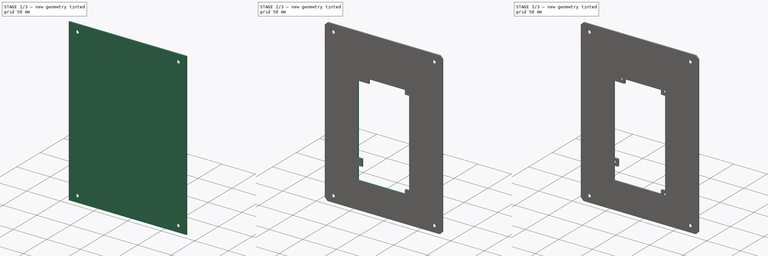
[diagram: build sequence overview — one tinted view per stage of 3, left to right]
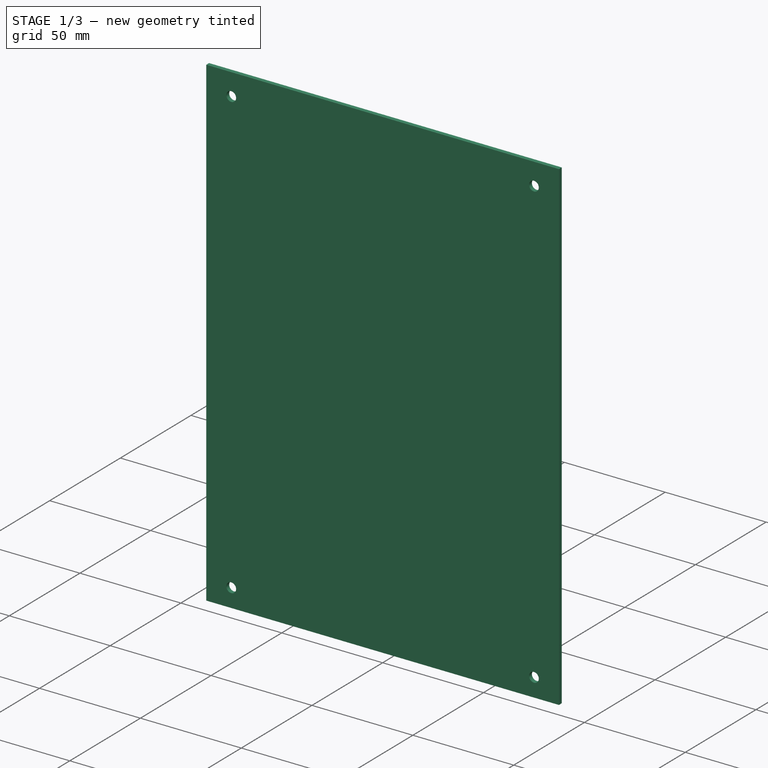
[diagram: stage 1 of 3 — iso view after this stage's code; geometry added in this stage tinted green]
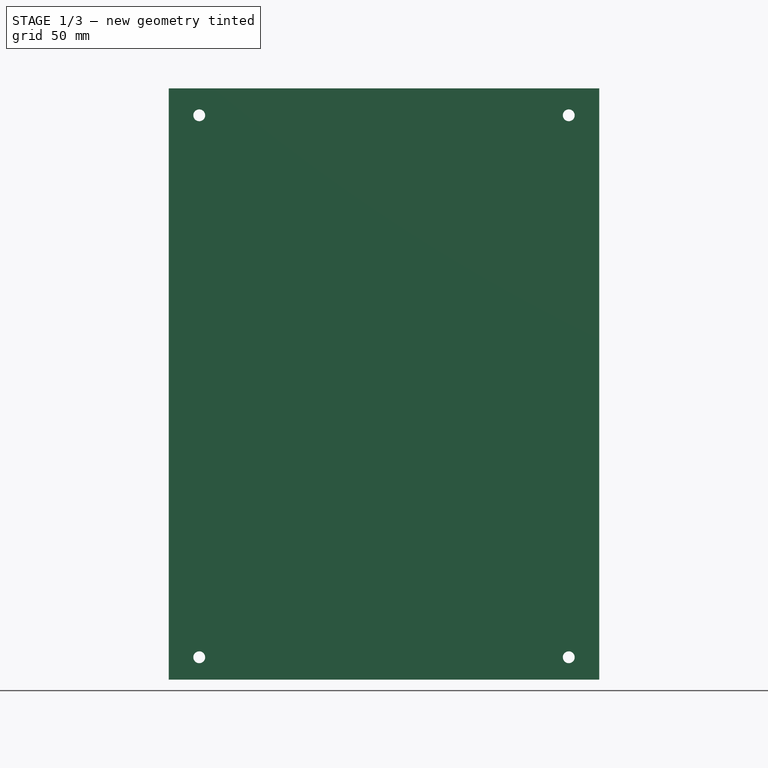
[diagram: stage 1 of 3 — front view after this stage's code; geometry added in this stage tinted green]
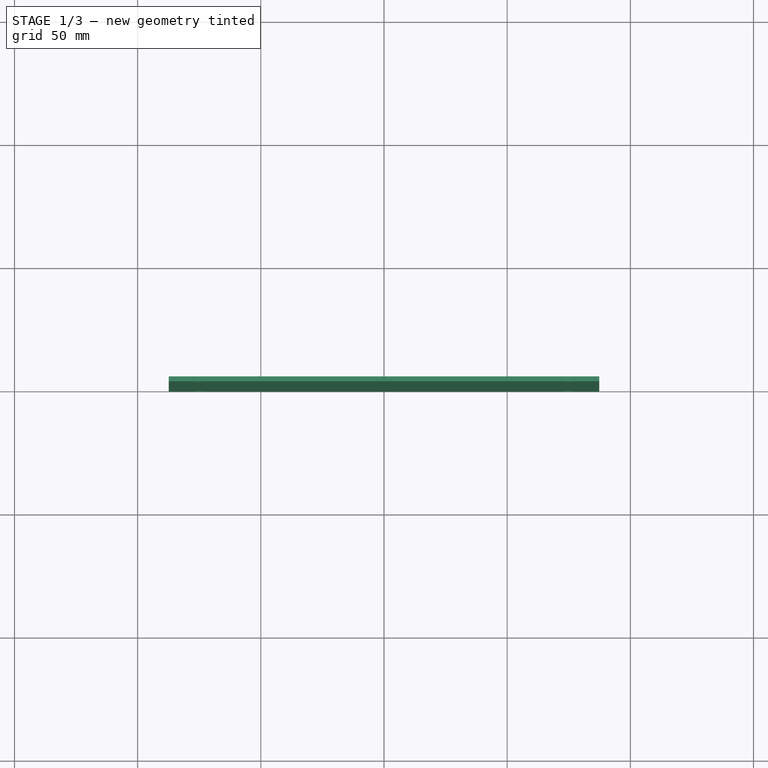
[diagram: stage 1 of 3 — top view after this stage's code; geometry added in this stage tinted green]
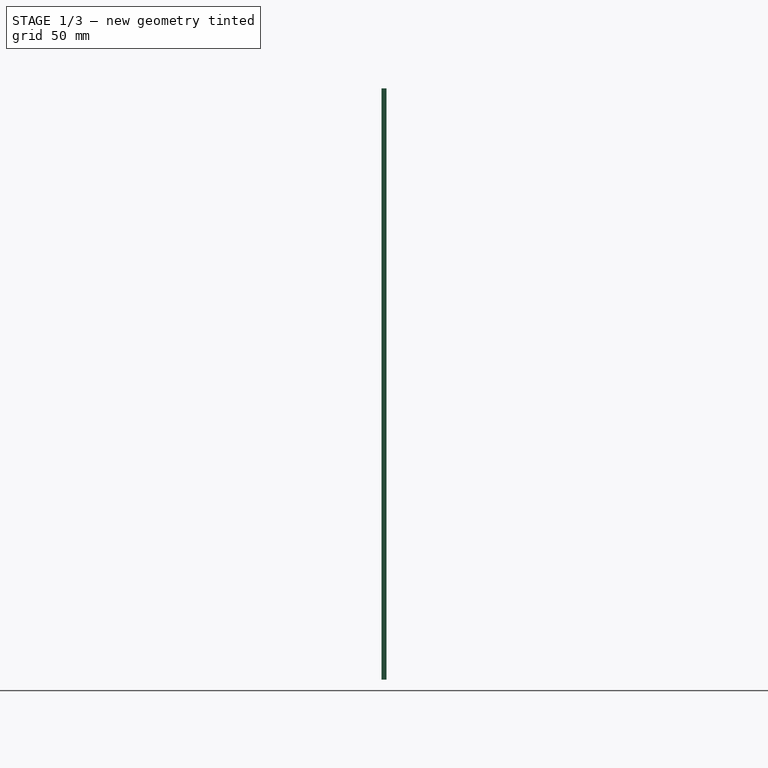
[diagram: stage 1 of 3 — right view after this stage's code; geometry added in this stage tinted green]
FCSTD DOCUMENT  (FreeCAD 1.0R39319 (Git))
Label: OCT-LFPNL-PA
License: All rights reserved
LicenseURL: https://en.wikipedia.org/wiki/All_rights_reserved
objects: Sketcher::SketchObject×4, PartDesign::Hole×2, App::Link×1, PartDesign::Pad×1, PartDesign::Chamfer×1, PartDesign::Pocket×1, PartDesign::Fillet×1, PartDesign::Body×1
note: 27 computed .brp shape members not serialized (recipe doc carries the construction recipe); baked Part::Feature solids carry a one-line shape summary decoded from their .brp
EXTERNAL_REF file=../master.FCStd obj=Spreadsheet

FEATURE [App::Link] Link  label="dims"
  LinkedObject = -> <external ../master.FCStd>#Spreadsheet
FEATURE [Sketcher::SketchObject] Sketch
  ArcFitTolerance = 1e-06
  AttachmentSupport = -> [XZ_Plane]
  FullyConstrained = true
  MakeInternals = false
  MapMode = 5
  Placement = pos=(0,0,0) rot=(1,0,0;1.5708rad)
  expr: Constraints[10] = <<dims>>.opFurnace
  expr: Constraints[11] = <<dims>>.lcHeight + 40
  sketch-geometry (5):
    g0: LineSegment StartX=-87.3991 StartY=-120 StartZ=0 EndX=87.3991 EndY=-120 EndZ=0
    g1: LineSegment StartX=87.3991 StartY=-120 StartZ=0 EndX=87.3991 EndY=120 EndZ=0
    g2: LineSegment StartX=87.3991 StartY=120 StartZ=0 EndX=-87.3991 EndY=120 EndZ=0
    g3: LineSegment StartX=-87.3991 StartY=120 StartZ=0 EndX=-87.3991 EndY=-120 EndZ=0
    g4: GeomPoint [constr] X=0 Y=0 Z=0
  constraints (12):
    c: Coincident(g0,g1)
    c: Coincident(g1,g2)
    c: Coincident(g2,g3)
    c: Coincident(g3,g0)
    c: Horizontal(g0)
    c: Horizontal(g2)
    c: Vertical(g1)
    c: Vertical(g3)
    c: Symmetric(g2,g0,g4)
    c: Coincident(g4,g-1)
    c: DistanceX(g2,g2) = 174.798
    c: DistanceY(g3,g3) = 240
FEATURE [PartDesign::Pad] Pad
  Direction = (0,-1,2e-16)
  Length = 2
  Length2 = 10
  Placement = pos=(0,0,0) rot=(1,0,0;1.5708rad)
  Profile = -> Sketch
  ReferenceAxis = -> Sketch [N_Axis]
  Refine = true
  Reversed = true
  Suppressed = false
  Type = 0
  expr: Length = <<dims>>.tLowerPanel
FEATURE [Sketcher::SketchObject] Sketch001
  ArcFitTolerance = 1e-06
  AttachmentSupport = -> [XZ_Plane]
  FullyConstrained = false
  MakeInternals = false
  MapMode = 5
  Placement = pos=(0,0,0) rot=(1,0,0;1.5708rad)
  expr: Constraints[19] = <<dims>>.lcHeight + 40 - 20
  sketch-geometry (9):
    g0: LineSegment [constr] StartX=-75 StartY=-110.925 StartZ=0 EndX=75 EndY=-110.925 EndZ=0
    g1: LineSegment [constr] StartX=75 StartY=-110.925 StartZ=0 EndX=75 EndY=109.075 EndZ=0
    g2: LineSegment [constr] StartX=75 StartY=109.075 StartZ=0 EndX=-75 EndY=109.075 EndZ=0
    g3: LineSegment [constr] StartX=-75 StartY=109.075 StartZ=0 EndX=-75 EndY=-110.925 EndZ=0
    g4: GeomPoint [constr] X=-1e-16 Y=-0.92532 Z=0
    g5: Circle CenterX=-75 CenterY=109.075 CenterZ=0 NormalX=0 NormalY=0 NormalZ=1 AngleXU=0 Radius=2
    g6: Circle CenterX=75 CenterY=109.075 CenterZ=0 NormalX=0 NormalY=0 NormalZ=1 AngleXU=0 Radius=2
    g7: Circle CenterX=75 CenterY=-110.925 CenterZ=0 NormalX=0 NormalY=0 NormalZ=1 AngleXU=0 Radius=2
    g8: Circle CenterX=-75 CenterY=-110.925 CenterZ=0 NormalX=0 NormalY=0 NormalZ=1 AngleXU=0 Radius=2
  constraints (20):
    c: Coincident(g0,g1)
    c: Coincident(g1,g2)
    c: Coincident(g2,g3)
    c: Coincident(g3,g0)
    c: Horizontal(g0)
    c: Horizontal(g2)
    c: Vertical(g1)
    c: Vertical(g3)
    c: Symmetric(g2,g0,g4)
    c: PointOnObject(g4,g-2)
    c: Coincident(g5,g2)
    c: Coincident(g6,g1)
    c: Coincident(g7,g0)
    c: Coincident(g8,g0)
    c: Equal(g8,g5)
    c: Equal(g5,g6)
    c: Equal(g6,g7)
    c: Diameter(g5) = 4
    c: DistanceX(g2,g2) = 150
    c: DistanceY(g3,g3) = 220
FEATURE [PartDesign::Hole] Hole  label="frame mount holes"
  BaseFeature = -> Pad
  CustomThreadClearance = 0
  Depth = 25
  DepthType = 0
  Diameter = 4.8
  DrillForDepth = false
  DrillPoint = 1
  DrillPointAngle = 118
  HoleCutCountersinkAngle = 90
  HoleCutCustomValues = false
  HoleCutDepth = 0
  HoleCutDiameter = 6.1
  HoleCutType = 0
  ModelThread = false
  Placement = pos=(0,0,0) rot=(1,0,0;1.5708rad)
  Profile = -> Sketch001
  Refine = true
  Suppressed = false
  Tapered = false
  TaperedAngle = 90
  ThreadClass = 0
  ThreadDepth = 25
  ThreadDepthType = 0
  ThreadDirection = 0
  ThreadFit = 2
  ThreadSize = 11
  ThreadType = 1
  Threaded = false
  UseCustomThreadClearance = false
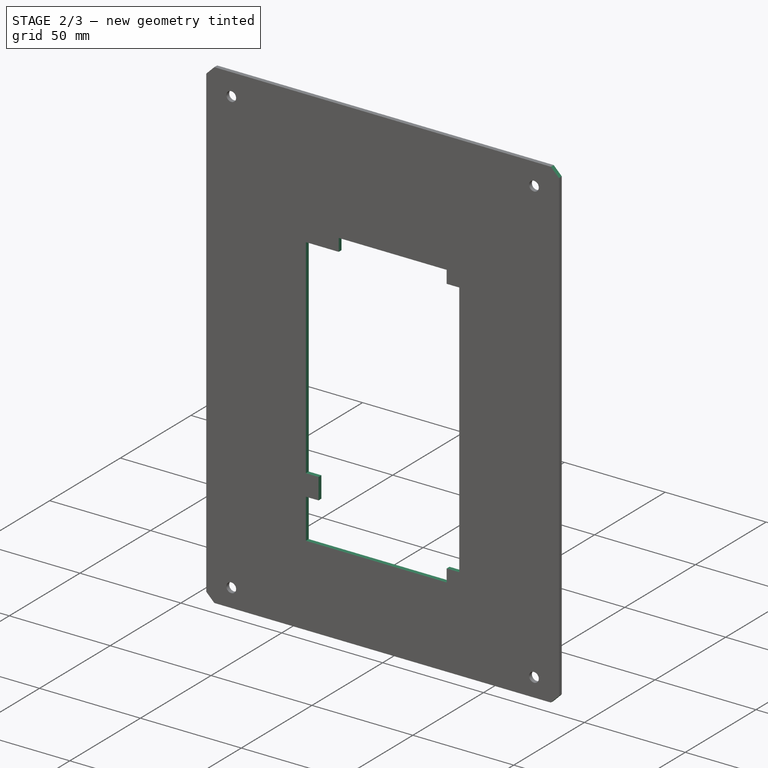
[diagram: stage 2 of 3 — iso view after this stage's code; geometry added in this stage tinted green]
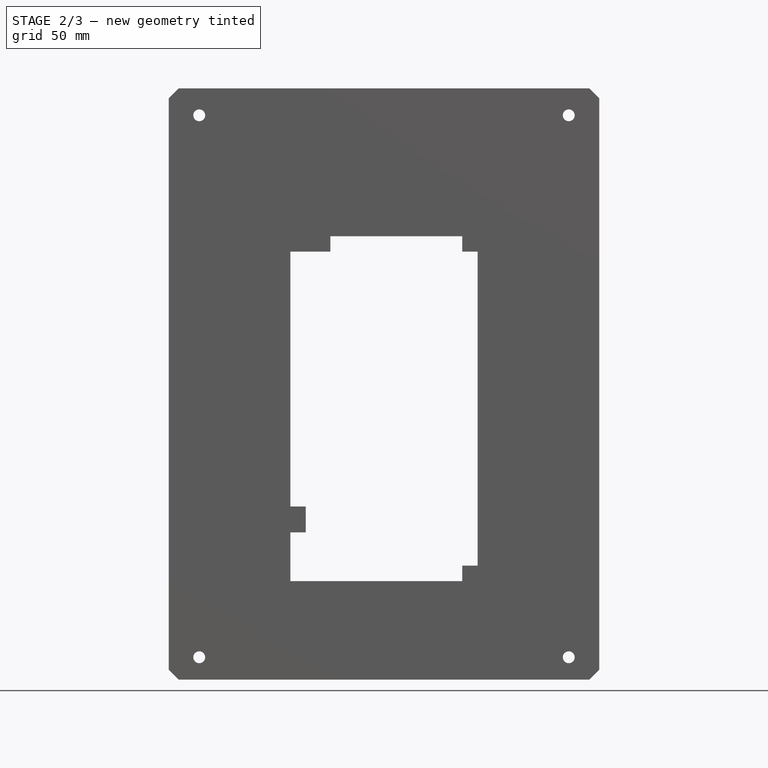
[diagram: stage 2 of 3 — front view after this stage's code; geometry added in this stage tinted green]
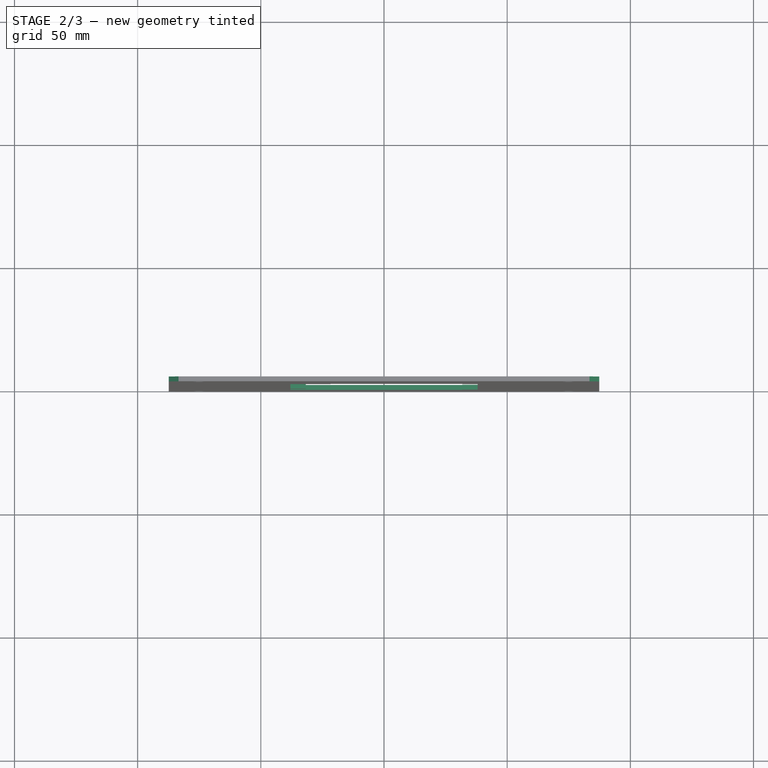
[diagram: stage 2 of 3 — top view after this stage's code; geometry added in this stage tinted green]
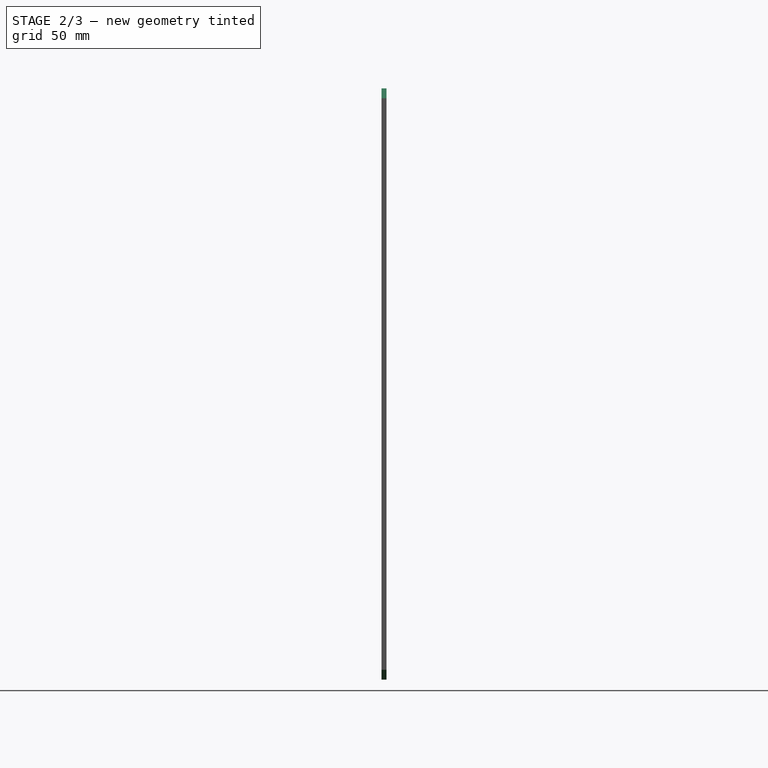
[diagram: stage 2 of 3 — right view after this stage's code; geometry added in this stage tinted green]
FEATURE [PartDesign::Chamfer] Chamfer
  Angle = 45
  Base = -> Hole [Edge5,Edge8,Edge2,Edge1]
  BaseFeature = -> Hole
  ChamferType = 0
  FlipDirection = false
  Placement = pos=(0,0,0) rot=(1,0,0;1.5708rad)
  Refine = true
  Size = 4
  Size2 = 1
  SupportTransform = false
  Suppressed = false
  UseAllEdges = false
FEATURE [Sketcher::SketchObject] Sketch002
  ArcFitTolerance = 1e-06
  AttachmentSupport = -> [XZ_Plane]
  FullyConstrained = true
  MakeInternals = false
  MapMode = 5
  Placement = pos=(0,0,0) rot=(1,0,0;1.5708rad)
  sketch-geometry (39):
    g0: LineSegment [constr] StartX=-43 StartY=-85 StartZ=0 EndX=-43 EndY=65 EndZ=0
    g1: LineSegment [constr] StartX=-43 StartY=65 StartZ=0 EndX=43 EndY=65 EndZ=0
    g2: LineSegment [constr] StartX=43 StartY=65 StartZ=0 EndX=43 EndY=-85 EndZ=0
    g3: LineSegment [constr] StartX=43 StartY=-85 StartZ=0 EndX=-43 EndY=-85 EndZ=0
    g4: GeomPoint [constr] X=0 Y=-10 Z=0
    g5: Circle [constr] CenterX=-27 CenterY=59 CenterZ=0 NormalX=0 NormalY=0 NormalZ=1 AngleXU=0 Radius=2.25
    g6: Circle [constr] CenterX=37 CenterY=59 CenterZ=0 NormalX=0 NormalY=0 NormalZ=1 AngleXU=0 Radius=2.25
    g7: Circle [constr] CenterX=37 CenterY=-79 CenterZ=0 NormalX=0 NormalY=0 NormalZ=1 AngleXU=0 Radius=2.25
    g8: Circle [constr] CenterX=-37 CenterY=-55 CenterZ=0 NormalX=0 NormalY=0 NormalZ=1 AngleXU=0 Radius=2.25
    g9: LineSegment [constr] StartX=-27 StartY=59 StartZ=0 EndX=37 EndY=59 EndZ=0
    g10: LineSegment [constr] StartX=37 StartY=59 StartZ=0 EndX=37 EndY=-79 EndZ=0
    g11: LineSegment StartX=-38 StartY=-80 StartZ=0 EndX=-38 EndY=-60.25 EndZ=0
    g12: LineSegment StartX=38 StartY=53.75 StartZ=0 EndX=38 EndY=-73.75 EndZ=0
    g13: GeomPoint [constr] X=0 Y=-10 Z=0
    g14: LineSegment StartX=31.75 StartY=60 StartZ=0 EndX=31.75 EndY=53.75 EndZ=0
    g15: LineSegment StartX=31.75 StartY=53.75 StartZ=0 EndX=38 EndY=53.75 EndZ=0
    g16: LineSegment StartX=-21.75 StartY=60 StartZ=0 EndX=-21.75 EndY=53.75 EndZ=0
    g17: LineSegment StartX=-21.75 StartY=53.75 StartZ=0 EndX=-32.25 EndY=53.75 EndZ=0
    g18: LineSegment [constr] StartX=-32.25 StartY=53.75 StartZ=0 EndX=-32.25 EndY=65 EndZ=0
    g19: LineSegment StartX=-38 StartY=-60.25 StartZ=0 EndX=-31.75 EndY=-60.25 EndZ=0
    g20: LineSegment StartX=-31.75 StartY=-60.25 StartZ=0 EndX=-31.75 EndY=-49.75 EndZ=0
    g21: LineSegment StartX=-31.75 StartY=-49.75 StartZ=0 EndX=-38 EndY=-49.75 EndZ=0
    g22: LineSegment StartX=38 StartY=-73.75 StartZ=0 EndX=31.75 EndY=-73.75 EndZ=0
    g23: LineSegment StartX=31.75 StartY=-73.75 StartZ=0 EndX=31.75 EndY=-80 EndZ=0
    g24: LineSegment [constr] StartX=-32.25 StartY=59 StartZ=0 EndX=-29.25 EndY=59 EndZ=0
    g25: LineSegment [constr] StartX=-24.75 StartY=59 StartZ=0 EndX=-21.75 EndY=59 EndZ=0
    g26: LineSegment [constr] StartX=-27 StartY=56.75 StartZ=0 EndX=-27 EndY=53.75 EndZ=0
    g27: LineSegment [constr] StartX=37 StartY=56.75 StartZ=0 EndX=37 EndY=53.75 EndZ=0
    g28: LineSegment [constr] StartX=31.75 StartY=59 StartZ=0 EndX=34.75 EndY=59 EndZ=0
    g29: LineSegment StartX=-21.75 StartY=60 StartZ=0 EndX=31.75 EndY=60 EndZ=0
    g30: LineSegment [constr] StartX=-37 StartY=-52.75 StartZ=0 EndX=-37 EndY=-49.75 EndZ=0
    g31: LineSegment [constr] StartX=-34.75 StartY=-55 StartZ=0 EndX=-31.75 EndY=-55 EndZ=0
    g32: LineSegment [constr] StartX=-37 StartY=-57.25 StartZ=0 EndX=-37 EndY=-60.25 EndZ=0
    g33: LineSegment StartX=-38 StartY=-49.75 StartZ=0 EndX=-38 EndY=53.75 EndZ=0
    g34: LineSegment [constr] StartX=34.75 StartY=-79 StartZ=0 EndX=31.75 EndY=-79 EndZ=0
    g35: LineSegment [constr] StartX=37 StartY=-76.75 StartZ=0 EndX=37 EndY=-73.75 EndZ=0
    g36: LineSegment StartX=31.75 StartY=-80 StartZ=0 EndX=-38 EndY=-80 EndZ=0
    g37: LineSegment StartX=-32.25 StartY=53.75 StartZ=0 EndX=-38 EndY=53.75 EndZ=0
    g38: LineSegment [constr] StartX=-43 StartY=-10 StartZ=0 EndX=43 EndY=-10 EndZ=0
  constraints (121):
    c: Coincident(g0,g1)
    c: Coincident(g1,g2)
    c: Coincident(g2,g3)
    c: Coincident(g3,g0)
    c: Horizontal(g1)
    c: Horizontal(g3)
    c: Vertical(g0)
    c: Vertical(g2)
    c: Symmetric(g1,g0,g4)
    c: DistanceY(g2,g2) = 150
    c: DistanceX(g1,g1) = 86
    c: Equal(g8,g7)
    c: Equal(g7,g6)
    c: Equal(g6,g5)
    c: Diameter(g5) = 4.5
    c: Coincident(g9,g5)
    c: Coincident(g9,g6)
    c: Horizontal(g9)
    c: Coincident(g10,g6)
    c: Coincident(g10,g7)
    c: DistanceY(g8,g5) = 114
    c: DistanceX(g9,g9) = 64
    c: DistanceX(g0,g5) = 16
    c: DistanceX(g0,g8) = 6
    c: DistanceY(g10,g10) = 138
    c: Coincident(g36,g11)
    c: Vertical(g11)
    c: Vertical(g12)
    c: Coincident(g13,g4)
    c: Vertical(g14)
    c: Coincident(g14,g15)
    c: Horizontal(g15)
    c: Vertical(g16)
    c: Coincident(g16,g17)
    c: Coincident(g17,g18)
    c: Vertical(g18)
    c: Coincident(g19,g20)
    c: Vertical(g20)
    c: Coincident(g20,g21)
    c: Horizontal(g21)
    c: Horizontal(g22)
    c: Coincident(g22,g23)
    c: PointOnObject(g24,g18)
    c: PointOnObject(g24,g5)
    c: PointOnObject(g25,g5)
    c: PointOnObject(g25,g16)
    c: Horizontal(g25)
    c: PointOnObject(g26,g5)
    c: PointOnObject(g26,g17)
    c: Vertical(g26)
    c: Horizontal(g17)
    c: Horizontal(g24)
    c: Perpendicular(g5,g24)
    c: Perpendicular(g5,g25)
    c: Perpendicular(g5,g26)
    c: Equal(g25,g26)
    c: Equal(g26,g24)
    c: DistanceY(g26,g26) = 3
    c: PointOnObject(g27,g15)
    c: Vertical(g27)
    c: PointOnObject(g28,g14)
    c: PointOnObject(g28,g6)
    c: PointOnObject(g27,g6)
    c: Perpendicular(g6,g27)
    c: Perpendicular(g6,g28)
    c: Horizontal(g28)
    c: Equal(g28,g27)
    c: Equal(g27,g26)
    c: Coincident(g29,g14)
    c: Coincident(g12,g15)
    c: Coincident(g29,g16)
    c: Horizontal(g19)
    c: PointOnObject(g30,g8)
    c: PointOnObject(g30,g21)
    c: PointOnObject(g31,g8)
    c: PointOnObject(g31,g20)
    c: PointOnObject(g32,g8)
    c: PointOnObject(g32,g19)
    c: Perpendicular(g8,g32)
    c: Perpendicular(g8,g31)
    c: Perpendicular(g8,g30)
    c: Vertical(g30)
    c: Vertical(g32)
    c: Horizontal(g31)
    c: Equal(g30,g31)
    c: Equal(g31,g32)
    c: Equal(g30,g26)
    c: Coincident(g33,g21)
    c: Coincident(g11,g19)
    c: Vertical(g23)
    c: PointOnObject(g34,g7)
    c: PointOnObject(g34,g23)
    c: Horizontal(g34)
    c: PointOnObject(g35,g7)
    c: PointOnObject(g35,g22)
    c: Perpendicular(g7,g35)
    c: Perpendicular(g7,g34)
    c: Vertical(g35)
    c: Equal(g34,g35)
    c: Equal(g35,g26)
    c: Coincident(g36,g23)
    c: Coincident(g12,g22)
    c: Coincident(g37,g17)
    c: Horizontal(g37)
    c: Coincident(g33,g37)
    c: DistanceY(g11,g16) = 140
    c: Horizontal(g36)
    c: Horizontal(g29)
    c: Equal(g14,g15)
    c: DistanceX(g21,g12) = 76
    c: Equal(g22,g23)
    c: Vertical(g33)
    c: PointOnObject(g11,g33)
    c: Equal(g22,g14)
    c: PointOnObject(g4,g-2)
    c: DistanceY(g4,g-1) = 10
    c: PointOnObject(g38,g0)
    c: PointOnObject(g38,g2)
    c: PointOnObject(g4,g38)
    c: Symmetric(g7,g6,g38)
    c: PointOnObject(g18,g1)
FEATURE [PartDesign::Pocket] Pocket  label="ATX cutout"
  BaseFeature = -> Chamfer
  Direction = (0,1,-2e-16)
  Length = 5
  Length2 = 5
  Placement = pos=(0,0,0) rot=(1,0,0;1.5708rad)
  Profile = -> Sketch002
  ReferenceAxis = -> Sketch002 [N_Axis]
  Refine = true
  Suppressed = false
  Type = 2
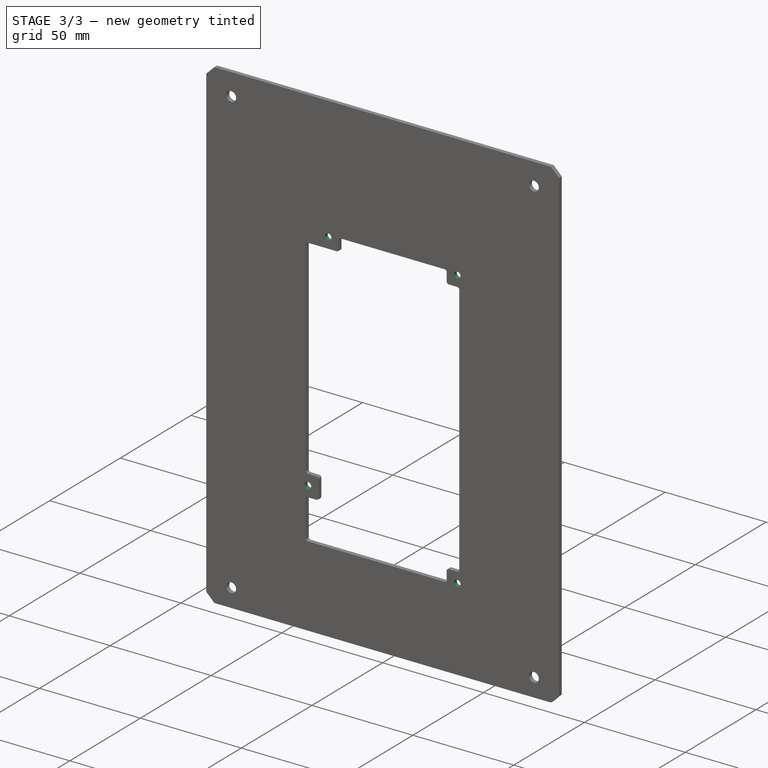
[diagram: stage 3 of 3 — iso view after this stage's code; geometry added in this stage tinted green]
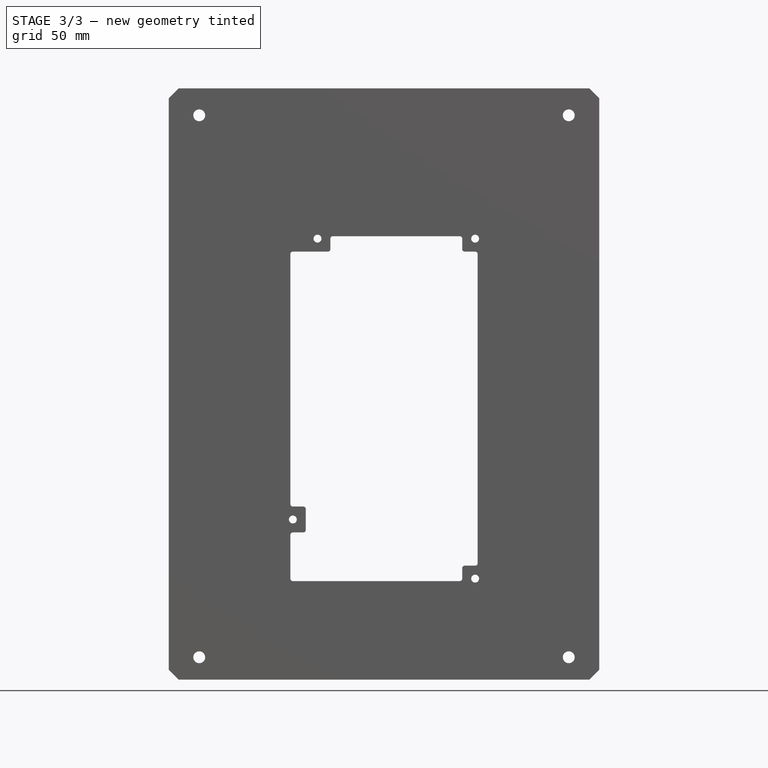
[diagram: stage 3 of 3 — front view after this stage's code; geometry added in this stage tinted green]
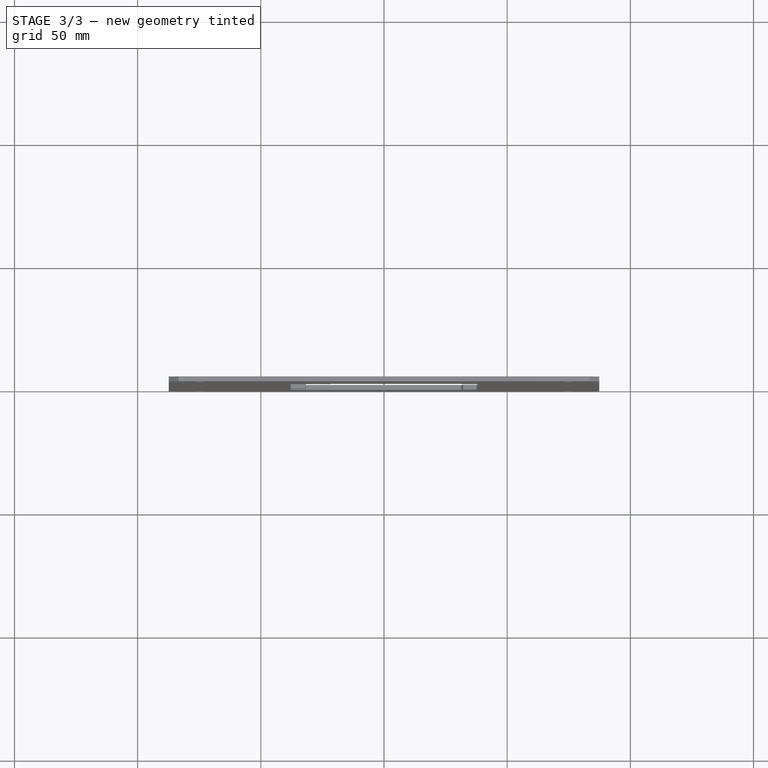
[diagram: stage 3 of 3 — top view after this stage's code; geometry added in this stage tinted green]
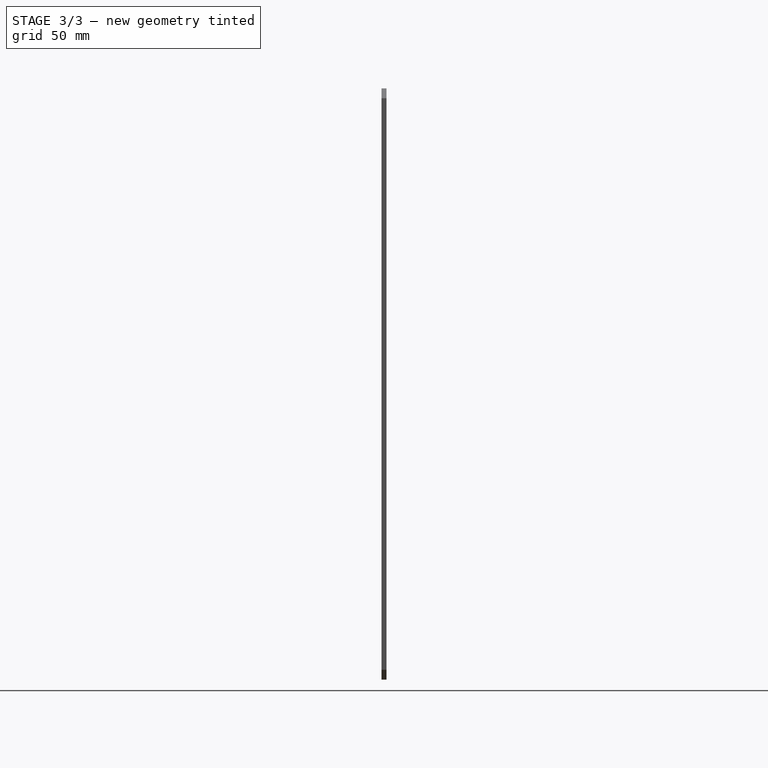
[diagram: stage 3 of 3 — right view after this stage's code; geometry added in this stage tinted green]
FEATURE [PartDesign::Fillet] Fillet  label="ATX cutout fillet"
  Base = -> Pocket [Edge64,Edge76,Edge75,Edge74,Edge73,Edge72,Edge71,Edge70,Edge69,Edge68,Edge67,Edge66,Edge65,Edge63]
  BaseFeature = -> Pocket
  Placement = pos=(0,0,0) rot=(1,0,0;1.5708rad)
  Radius = 1
  Refine = true
  SupportTransform = false
  Suppressed = false
  UseAllEdges = false
FEATURE [Sketcher::SketchObject] Sketch003
  ArcFitTolerance = 1e-06
  AttachmentSupport = -> [XZ_Plane]
  FullyConstrained = true
  MakeInternals = false
  MapMode = 5
  Placement = pos=(0,0,0) rot=(1,0,0;1.5708rad)
  sketch-geometry (13):
    g0: Circle CenterX=-27 CenterY=59 CenterZ=0 NormalX=0 NormalY=0 NormalZ=1 AngleXU=0 Radius=1.5
    g1: Circle CenterX=37 CenterY=59 CenterZ=0 NormalX=0 NormalY=0 NormalZ=1 AngleXU=0 Radius=1.5
    g2: Circle CenterX=37 CenterY=-79 CenterZ=0 NormalX=0 NormalY=0 NormalZ=1 AngleXU=0 Radius=1.5
    g3: Circle CenterX=-37 CenterY=-55 CenterZ=0 NormalX=0 NormalY=0 NormalZ=1 AngleXU=0 Radius=1.5
    g4: LineSegment [constr] StartX=37 StartY=59 StartZ=0 EndX=37 EndY=-79 EndZ=0
    g5: LineSegment [constr] StartX=37 StartY=59 StartZ=0 EndX=-27 EndY=59 EndZ=0
    g6: LineSegment [constr] StartX=-43 StartY=-10 StartZ=0 EndX=37 EndY=-10 EndZ=0
    g7: GeomPoint [constr] X=0 Y=-10 Z=0
    g8: LineSegment [constr] StartX=-43 StartY=-85 StartZ=0 EndX=43 EndY=-85 EndZ=0
    g9: LineSegment [constr] StartX=43 StartY=-85 StartZ=0 EndX=43 EndY=65 EndZ=0
    g10: LineSegment [constr] StartX=43 StartY=65 StartZ=0 EndX=-43 EndY=65 EndZ=0
    g11: LineSegment [constr] StartX=-43 StartY=65 StartZ=0 EndX=-43 EndY=-85 EndZ=0
    g12: GeomPoint [constr] X=0 Y=-10 Z=0
  constraints (33):
    c: Equal(g1,g0)
    c: Equal(g0,g3)
    c: Equal(g3,g2)
    c: Diameter(g2) = 3
    c: Coincident(g4,g1)
    c: Coincident(g4,g2)
    c: Vertical(g4)
    c: Coincident(g5,g1)
    c: Coincident(g5,g0)
    c: Horizontal(g5)
    c: PointOnObject(g6,g4)
    c: PointOnObject(g7,g-2)
    c: DistanceY(g7,g-1) = 10
    c: DistanceY(g4,g4) = 138
    c: DistanceY(g3,g0) = 114
    c: Coincident(g8,g9)
    c: Coincident(g9,g10)
    c: Coincident(g10,g11)
    c: Coincident(g11,g8)
    c: Horizontal(g8)
    c: Horizontal(g10)
    c: Vertical(g9)
    c: Vertical(g11)
    c: Symmetric(g10,g8,g12)
    c: Coincident(g12,g7)
    c: DistanceY(g9,g9) = 150
    c: DistanceX(g10,g10) = 86
    c: DistanceX(g5,g5) = 64
    c: Symmetric(g1,g2,g6)
    c: DistanceX(g10,g0) = 16
    c: DistanceX(g8,g3) = 6
    c: PointOnObject(g7,g6)
    c: PointOnObject(g6,g11)
FEATURE [PartDesign::Hole] Hole001
  BaseFeature = -> Fillet
  CustomThreadClearance = 0
  Depth = 599.768
  DepthType = 1
  Diameter = 3.2
  DrillForDepth = false
  DrillPoint = 1
  DrillPointAngle = 118
  HoleCutCountersinkAngle = 90
  HoleCutCustomValues = false
  HoleCutDepth = 0
  HoleCutDiameter = 6.1
  HoleCutType = 0
  ModelThread = false
  Placement = pos=(0,0,0) rot=(1,0,0;1.5708rad)
  Profile = -> Sketch003
  Refine = true
  Suppressed = false
  Tapered = false
  TaperedAngle = 90
  ThreadClass = 0
  ThreadDepth = 599.768
  ThreadDepthType = 0
  ThreadDirection = 0
  ThreadFit = 1
  ThreadSize = 9
  ThreadType = 1
  Threaded = false
  UseCustomThreadClearance = false
FEATURE [PartDesign::Body] Body  label="panel"
  AllowCompound = false
  Group = -> [Sketch,Pad,Sketch001,Hole,Chamfer,Sketch002,Pocket,Fillet,Sketch003,Hole001]
  Origin = -> Origin
  Tip = -> Hole001
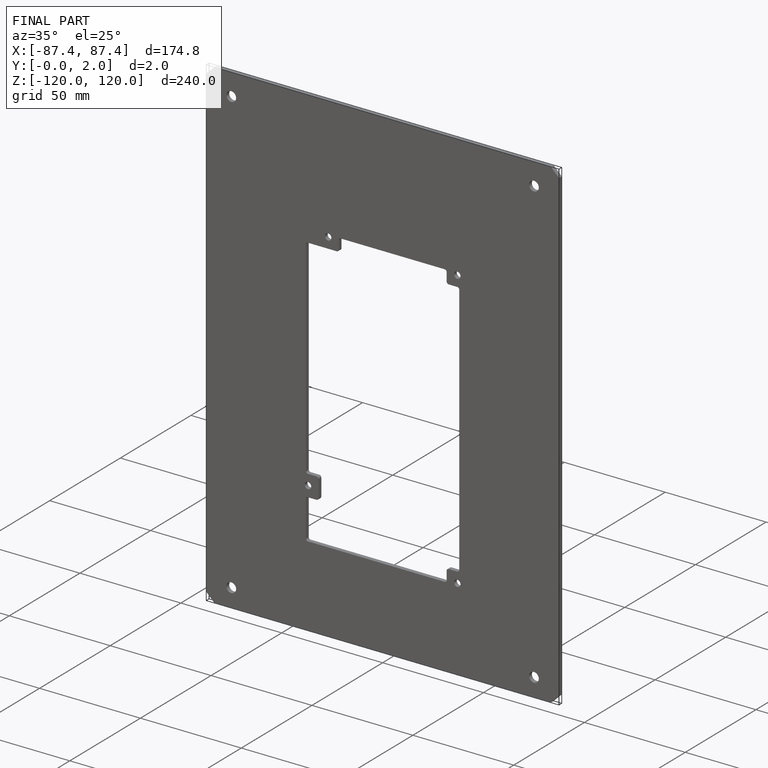
[diagram: finished part — iso view with bounding-box wireframe]
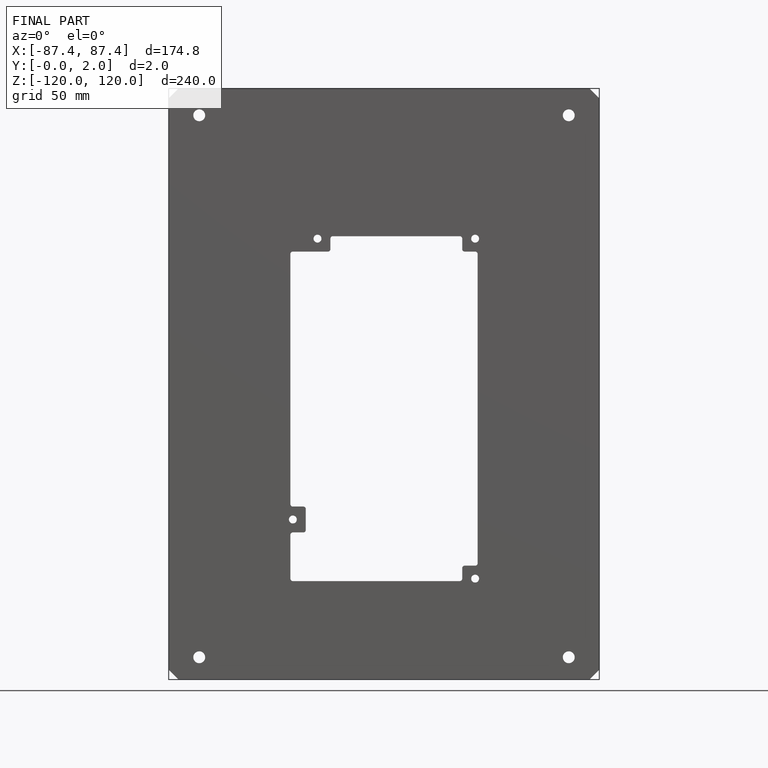
[diagram: finished part — front view with bounding-box wireframe]
